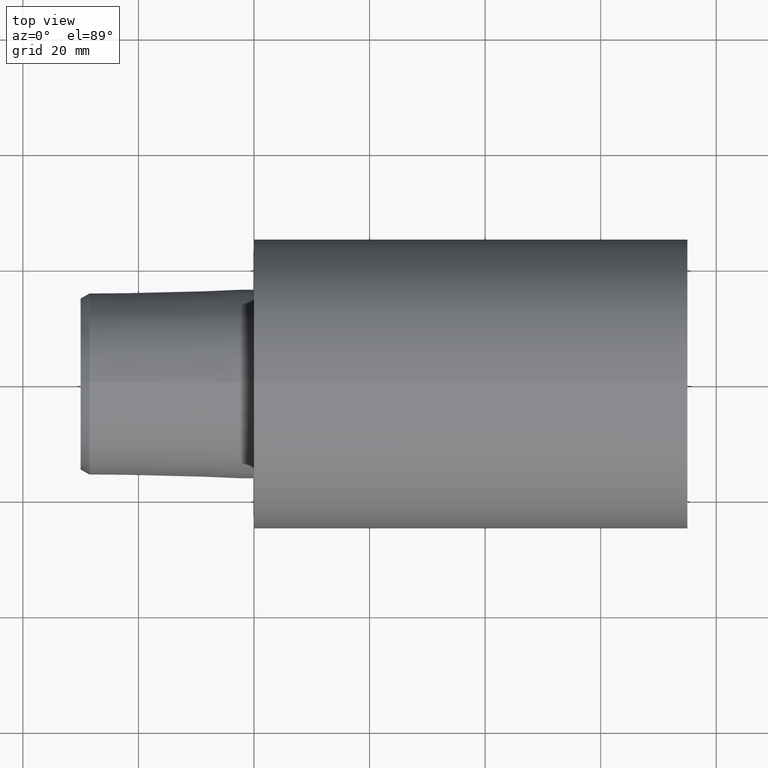
[diagram: clean part render]
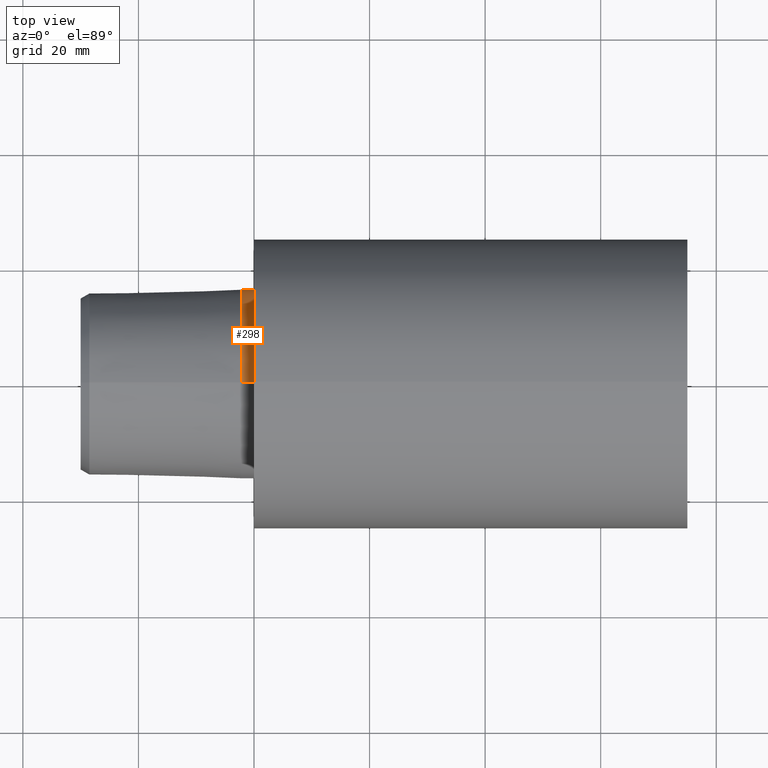
[diagram: same view with one face highlighted and labeled with its STEP entity id]
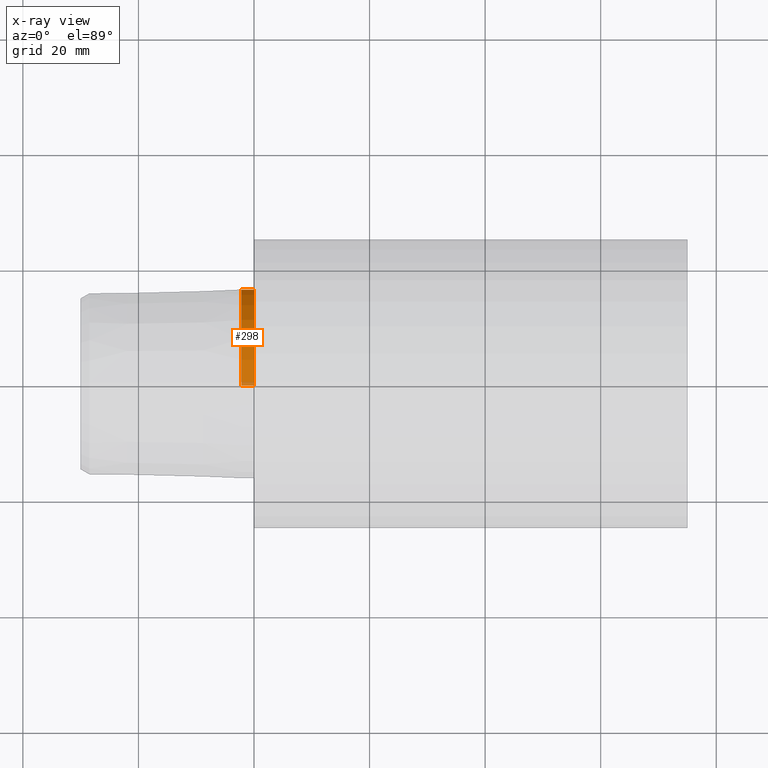
[diagram: x-ray of the same camera — body ghosted, the highlighted face saturated]
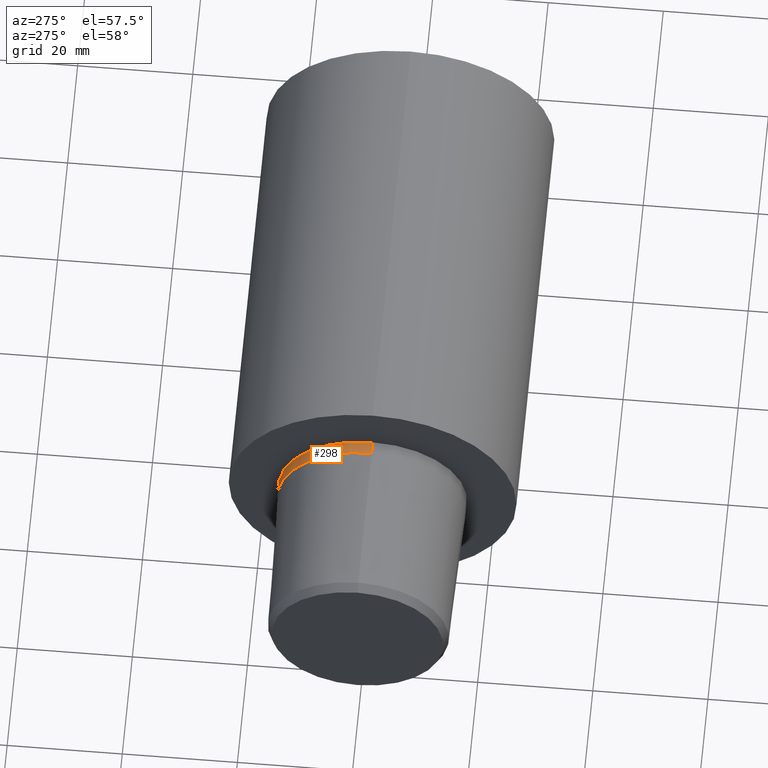
[diagram: same view with one face highlighted and labeled with its STEP entity id]
A machine part, top view. The second image highlights one B-rep face of the part: STEP entity #298.
The next image is the same camera in x-ray: the body ghosted, the highlighted face saturated — about 4% of this face is hidden behind the body in this view.
A second angle (auxiliary view) of the same face is appended — the face is thin or edge-on in the first view.
In plain terms, the highlighted cylindrical surface (partial cylindrical patch) has radius 16.4 mm, axis along (1, 0, 0).
Its self-contained STEP definition (entity closure, byte-faithful):
#29 = DIRECTION ( 'NONE',  ( 1.000000000000000000, 0.000000000000000000, 0.000000000000000000 ) ) ;
#30 = VECTOR ( 'NONE', #129, 1000.000000000000000 ) ;
#31 = DIRECTION ( 'NONE',  ( 0.000000000000000000, 0.000000000000000000, -1.000000000000000000 ) ) ;
#81 = CYLINDRICAL_SURFACE ( 'NONE', #235, 16.40000330327199762 ) ;
#84 = EDGE_CURVE ( 'NONE', #152, #147, #240, .T. ) ;
#85 = DIRECTION ( 'NONE',  ( 1.000000000000000000, 0.000000000000000000, 0.000000000000000000 ) ) ;
#104 = AXIS2_PLACEMENT_3D ( 'NONE', #245, #110, #212 ) ;
#110 = DIRECTION ( 'NONE',  ( 1.000000000000000000, 0.000000000000000000, 0.000000000000000000 ) ) ;
#116 = DIRECTION ( 'NONE',  ( 1.000000000000000000, 0.000000000000000000, 0.000000000000000000 ) ) ;
#129 = DIRECTION ( 'NONE',  ( 1.000000000000000000, 0.000000000000000000, 0.000000000000000000 ) ) ;
#136 = LINE ( 'NONE', #270, #320 ) ;
#137 = CARTESIAN_POINT ( 'NONE',  ( -2.199937517756067606, 0.000000000000000000, 0.000000000000000000 ) ) ;
#144 = CIRCLE ( 'NONE', #252, 16.40000330327199762 ) ;
#147 = VERTEX_POINT ( 'NONE', #186 ) ;
#152 = VERTEX_POINT ( 'NONE', #164 ) ;
#156 = VERTEX_POINT ( 'NONE', #354 ) ;
#159 = CARTESIAN_POINT ( 'NONE',  ( 74.99999992349999900, 2.008421155135807723E-15, 16.40000330327199762 ) ) ;
#163 = EDGE_CURVE ( 'NONE', #156, #176, #136, .T. ) ;
#164 = CARTESIAN_POINT ( 'NONE',  ( -2.199937517756067606, 2.008421155135807723E-15, 16.40000330327199762 ) ) ;
#176 = VERTEX_POINT ( 'NONE', #267 ) ;
#186 = CARTESIAN_POINT ( 'NONE',  ( 0.000000000000000000, 2.008421155135807723E-15, 16.40000330327199762 ) ) ;
#187 = DIRECTION ( 'NONE',  ( 0.000000000000000000, 0.000000000000000000, -1.000000000000000000 ) ) ;
#206 = EDGE_CURVE ( 'NONE', #156, #152, #144, .T. ) ;
#212 = DIRECTION ( 'NONE',  ( 0.000000000000000000, 0.000000000000000000, -1.000000000000000000 ) ) ;
#223 = ORIENTED_EDGE ( 'NONE', *, *, #163, .F. ) ;
#227 = ORIENTED_EDGE ( 'NONE', *, *, #247, .F. ) ;
#228 = CIRCLE ( 'NONE', #104, 16.40000330327199762 ) ;
#235 = AXIS2_PLACEMENT_3D ( 'NONE', #301, #116, #187 ) ;
#240 = LINE ( 'NONE', #159, #30 ) ;
#245 = CARTESIAN_POINT ( 'NONE',  ( 0.000000000000000000, 0.000000000000000000, 0.000000000000000000 ) ) ;
#247 = EDGE_CURVE ( 'NONE', #176, #147, #228, .T. ) ;
#251 = ORIENTED_EDGE ( 'NONE', *, *, #206, .T. ) ;
#252 = AXIS2_PLACEMENT_3D ( 'NONE', #137, #29, #31 ) ;
#267 = CARTESIAN_POINT ( 'NONE',  ( 0.000000000000000000, 0.000000000000000000, -16.40000330327199762 ) ) ;
#270 = CARTESIAN_POINT ( 'NONE',  ( 74.99999992349999900, 0.000000000000000000, -16.40000330327199762 ) ) ;
#277 = EDGE_LOOP ( 'NONE', ( #251, #314, #227, #223 ) ) ;
#298 = ADVANCED_FACE ( 'NONE', ( #331 ), #81, .T. ) ;
#301 = CARTESIAN_POINT ( 'NONE',  ( 74.99999992349999900, 0.000000000000000000, 0.000000000000000000 ) ) ;
#314 = ORIENTED_EDGE ( 'NONE', *, *, #84, .T. ) ;
#320 = VECTOR ( 'NONE', #85, 1000.000000000000000 ) ;
#331 = FACE_OUTER_BOUND ( 'NONE', #277, .T. ) ;
#354 = CARTESIAN_POINT ( 'NONE',  ( -2.199937517756067606, 0.000000000000000000, -16.40000330327199762 ) ) ;